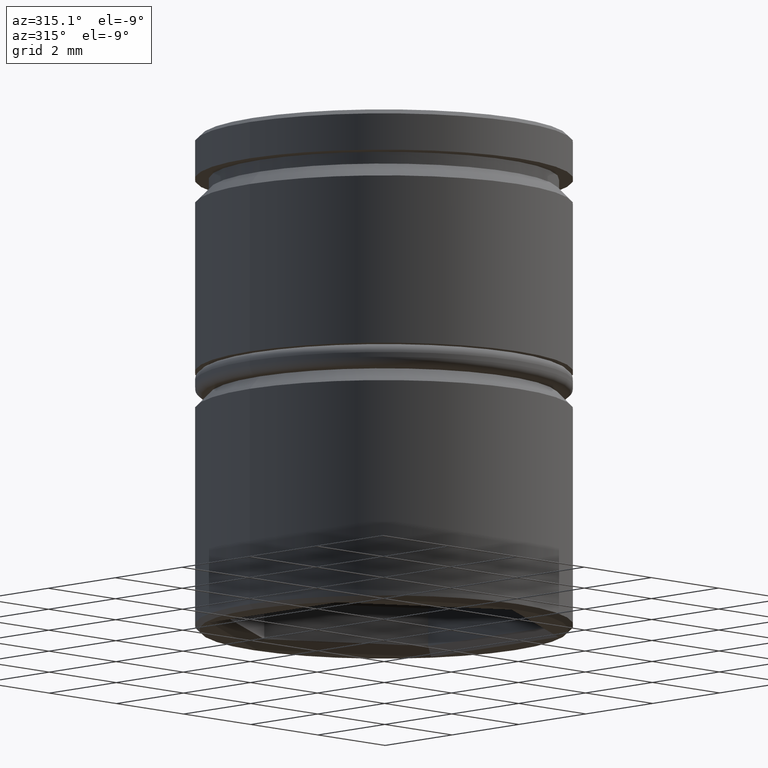
[diagram: clean part render]
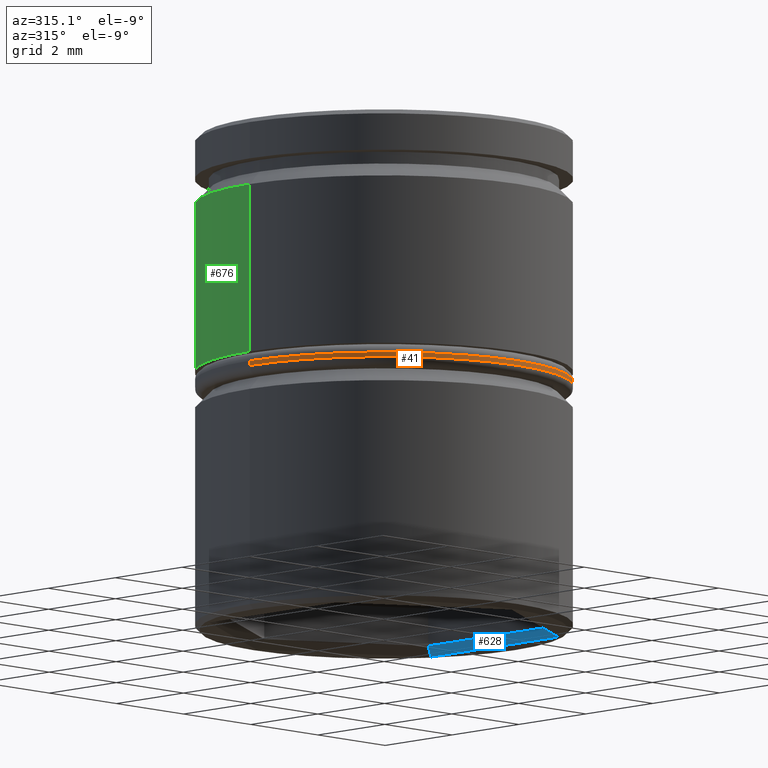
[diagram: same view with three faces highlighted in distinct colors, each labeled with its STEP entity id]
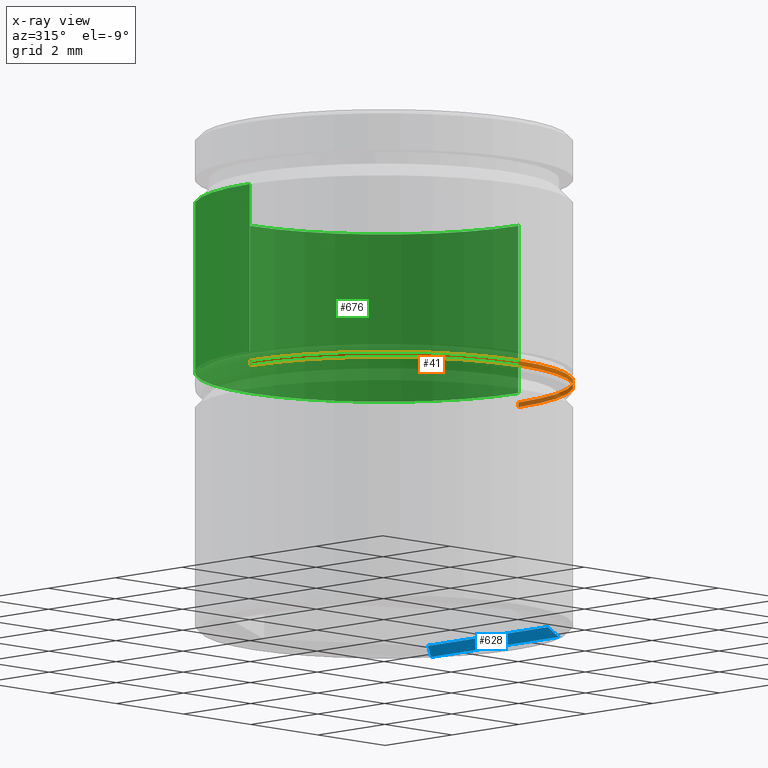
[diagram: x-ray of the same camera — body ghosted, the three highlighted faces saturated]
A machine part, auxiliary view with three faces highlighted in distinct colors.
The next image is the same camera in x-ray (body ghosted, the three faces saturated) — at least one of them is partly hidden behind the body in this view.
Their STEP definitions:

[orange] entity #41 — the highlighted cylindrical surface (partial cylindrical patch) has radius 4 mm, axis along (-0, -0, 1).
#24 = VERTEX_POINT ( 'NONE', #909 ) ;
#41 = ADVANCED_FACE ( 'NONE', ( #648 ), #1118, .T. ) ;
#68 = CARTESIAN_POINT ( 'NONE',  ( -4.000000000000000000, 4.898587196589412829E-16, -5.299999999999998934 ) ) ;
#74 = CARTESIAN_POINT ( 'NONE',  ( 4.000000000000000000, 0.000000000000000000, -5.200000000000000178 ) ) ;
#81 = DIRECTION ( 'NONE',  ( -0.000000000000000000, -0.000000000000000000, 1.000000000000000000 ) ) ;
#85 = DIRECTION ( 'NONE',  ( -0.000000000000000000, -0.000000000000000000, 1.000000000000000000 ) ) ;
#87 = EDGE_CURVE ( 'NONE', #920, #1004, #977, .T. ) ;
#154 = EDGE_CURVE ( 'NONE', #941, #24, #1126, .T. ) ;
#276 = CARTESIAN_POINT ( 'NONE',  ( 0.000000000000000000, 0.000000000000000000, -16.81370849898475939 ) ) ;
#351 = AXIS2_PLACEMENT_3D ( 'NONE', #441, #1005, #385 ) ;
#360 = ORIENTED_EDGE ( 'NONE', *, *, #87, .T. ) ;
#385 = DIRECTION ( 'NONE',  ( -1.000000000000000000, 0.000000000000000000, 0.000000000000000000 ) ) ;
#430 = EDGE_CURVE ( 'NONE', #941, #1004, #890, .T. ) ;
#441 = CARTESIAN_POINT ( 'NONE',  ( 0.000000000000000000, 0.000000000000000000, -5.200000000000000178 ) ) ;
#457 = ORIENTED_EDGE ( 'NONE', *, *, #785, .T. ) ;
#472 = CARTESIAN_POINT ( 'NONE',  ( 0.000000000000000000, 0.000000000000000000, -5.299999999999998934 ) ) ;
#481 = EDGE_LOOP ( 'NONE', ( #1057, #1175, #457, #360 ) ) ;
#537 = AXIS2_PLACEMENT_3D ( 'NONE', #472, #1111, #842 ) ;
#648 = FACE_OUTER_BOUND ( 'NONE', #481, .T. ) ;
#684 = LINE ( 'NONE', #1069, #1082 ) ;
#703 = AXIS2_PLACEMENT_3D ( 'NONE', #276, #85, #731 ) ;
#731 = DIRECTION ( 'NONE',  ( 1.000000000000000000, 0.000000000000000000, 0.000000000000000000 ) ) ;
#785 = EDGE_CURVE ( 'NONE', #24, #920, #684, .T. ) ;
#796 = VECTOR ( 'NONE', #81, 1000.000000000000000 ) ;
#823 = CARTESIAN_POINT ( 'NONE',  ( -4.000000000000000000, 4.898587196589412829E-16, -5.200000000000000178 ) ) ;
#842 = DIRECTION ( 'NONE',  ( 1.000000000000000000, 0.000000000000000000, 0.000000000000000000 ) ) ;
#884 = CARTESIAN_POINT ( 'NONE',  ( -4.000000000000000000, 4.898587196589412829E-16, -16.81370849898475939 ) ) ;
#890 = LINE ( 'NONE', #884, #796 ) ;
#909 = CARTESIAN_POINT ( 'NONE',  ( 4.000000000000000000, 0.000000000000000000, -5.299999999999998934 ) ) ;
#920 = VERTEX_POINT ( 'NONE', #74 ) ;
#941 = VERTEX_POINT ( 'NONE', #68 ) ;
#977 = CIRCLE ( 'NONE', #351, 4.000000000000000000 ) ;
#1004 = VERTEX_POINT ( 'NONE', #823 ) ;
#1005 = DIRECTION ( 'NONE',  ( 0.000000000000000000, 0.000000000000000000, -1.000000000000000000 ) ) ;
#1055 = DIRECTION ( 'NONE',  ( -0.000000000000000000, -0.000000000000000000, 1.000000000000000000 ) ) ;
#1057 = ORIENTED_EDGE ( 'NONE', *, *, #430, .F. ) ;
#1069 = CARTESIAN_POINT ( 'NONE',  ( 4.000000000000000000, 0.000000000000000000, -16.81370849898475939 ) ) ;
#1082 = VECTOR ( 'NONE', #1055, 1000.000000000000000 ) ;
#1111 = DIRECTION ( 'NONE',  ( 0.000000000000000000, 0.000000000000000000, 1.000000000000000000 ) ) ;
#1118 = CYLINDRICAL_SURFACE ( 'NONE', #703, 4.000000000000000000 ) ;
#1126 = CIRCLE ( 'NONE', #537, 4.000000000000000000 ) ;
#1175 = ORIENTED_EDGE ( 'NONE', *, *, #154, .T. ) ;

[blue] entity #628 — the highlighted planar face has unit normal (-0.7071, 0, -0.7071).
#22 = CARTESIAN_POINT ( 'NONE',  ( 3.299999999999999378, -1.905255888325763980, -10.50000000000000000 ) ) ;
#35 = CARTESIAN_POINT ( 'NONE',  ( 3.299999999999999822, 1.789785834487839455, -10.50000000000000000 ) ) ;
#52 = PLANE ( 'NONE',  #925 ) ;
#66 = DIRECTION ( 'NONE',  ( -0.7071067811865503483, 8.566910001956425243E-17, -0.7071067811865447972 ) ) ;
#76 = EDGE_CURVE ( 'NONE', #662, #1043, #808, .T. ) ;
#111 = VECTOR ( 'NONE', #414, 999.9999999999998863 ) ;
#134 = DIRECTION ( 'NONE',  ( 0.6546536707079758655, -0.3779644730092231453, -0.6546536707079808615 ) ) ;
#172 = EDGE_CURVE ( 'NONE', #662, #888, #320, .T. ) ;
#203 = EDGE_CURVE ( 'NONE', #765, #888, #573, .T. ) ;
#233 = CARTESIAN_POINT ( 'NONE',  ( 3.100000000000000977, -1.789785834487840344, -10.30000000000000071 ) ) ;
#258 = CARTESIAN_POINT ( 'NONE',  ( 3.100000000000000977, 1.789785834487839455, -10.30000000000000071 ) ) ;
#285 = DIRECTION ( 'NONE',  ( -1.211544031239644746E-16, -1.000000000000000000, 0.000000000000000000 ) ) ;
#320 = LINE ( 'NONE', #683, #111 ) ;
#397 = VECTOR ( 'NONE', #285, 1000.000000000000000 ) ;
#414 = DIRECTION ( 'NONE',  ( 0.6546536707079754214, 0.3779644730092244220, -0.6546536707079805284 ) ) ;
#551 = CARTESIAN_POINT ( 'NONE',  ( 3.100000000000000977, -1.789785834487840344, -10.30000000000000071 ) ) ;
#570 = DIRECTION ( 'NONE',  ( 1.211544031239644746E-16, 1.000000000000000000, 0.000000000000000000 ) ) ;
#573 = LINE ( 'NONE', #35, #598 ) ;
#598 = VECTOR ( 'NONE', #570, 1000.000000000000000 ) ;
#628 = ADVANCED_FACE ( 'NONE', ( #1149 ), #52, .T. ) ;
#662 = VERTEX_POINT ( 'NONE', #700 ) ;
#664 = CARTESIAN_POINT ( 'NONE',  ( 3.100000000000000977, -1.789785834487840344, -10.30000000000000071 ) ) ;
#683 = CARTESIAN_POINT ( 'NONE',  ( 2.214285714285717077, 1.278418453205603544, -9.414285714285709261 ) ) ;
#700 = CARTESIAN_POINT ( 'NONE',  ( 3.100000000000000977, 1.789785834487839455, -10.30000000000000071 ) ) ;
#765 = VERTEX_POINT ( 'NONE', #22 ) ;
#797 = VECTOR ( 'NONE', #134, 1000.000000000000000 ) ;
#807 = ORIENTED_EDGE ( 'NONE', *, *, #76, .F. ) ;
#808 = LINE ( 'NONE', #551, #397 ) ;
#829 = EDGE_LOOP ( 'NONE', ( #1178, #954, #1077, #807 ) ) ;
#888 = VERTEX_POINT ( 'NONE', #956 ) ;
#925 = AXIS2_PLACEMENT_3D ( 'NONE', #258, #66, #957 ) ;
#954 = ORIENTED_EDGE ( 'NONE', *, *, #203, .F. ) ;
#956 = CARTESIAN_POINT ( 'NONE',  ( 3.299999999999999822, 1.905255888325763536, -10.50000000000000000 ) ) ;
#957 = DIRECTION ( 'NONE',  ( 1.211544031239644746E-16, 1.000000000000000000, 0.000000000000000000 ) ) ;
#1023 = EDGE_CURVE ( 'NONE', #1043, #765, #1135, .T. ) ;
#1043 = VERTEX_POINT ( 'NONE', #233 ) ;
#1077 = ORIENTED_EDGE ( 'NONE', *, *, #1023, .F. ) ;
#1135 = LINE ( 'NONE', #664, #797 ) ;
#1149 = FACE_OUTER_BOUND ( 'NONE', #829, .T. ) ;
#1178 = ORIENTED_EDGE ( 'NONE', *, *, #172, .T. ) ;

[green] entity #676 — the highlighted cylindrical surface (partial cylindrical patch) has radius 4 mm, axis along (-0, -0, 1).
#19 = EDGE_CURVE ( 'NONE', #567, #744, #291, .T. ) ;
#175 = DIRECTION ( 'NONE',  ( 1.000000000000000000, 0.000000000000000000, 0.000000000000000000 ) ) ;
#191 = CARTESIAN_POINT ( 'NONE',  ( 4.000000000000000000, 0.000000000000000000, 0.000000000000000000 ) ) ;
#219 = VERTEX_POINT ( 'NONE', #230 ) ;
#227 = CARTESIAN_POINT ( 'NONE',  ( 0.000000000000000000, 0.000000000000000000, -4.999999999999999112 ) ) ;
#230 = CARTESIAN_POINT ( 'NONE',  ( -4.000000000000000000, 4.898587196589412829E-16, -1.425000000000001821 ) ) ;
#244 = DIRECTION ( 'NONE',  ( 1.000000000000000000, 0.000000000000000000, 0.000000000000000000 ) ) ;
#249 = CIRCLE ( 'NONE', #638, 4.000000000000000000 ) ;
#265 = VECTOR ( 'NONE', #1150, 1000.000000000000000 ) ;
#291 = LINE ( 'NONE', #191, #1171 ) ;
#323 = AXIS2_PLACEMENT_3D ( 'NONE', #227, #575, #772 ) ;
#329 = CARTESIAN_POINT ( 'NONE',  ( 0.000000000000000000, 0.000000000000000000, -1.425000000000001821 ) ) ;
#330 = EDGE_CURVE ( 'NONE', #629, #219, #616, .T. ) ;
#389 = EDGE_CURVE ( 'NONE', #219, #744, #249, .T. ) ;
#390 = CARTESIAN_POINT ( 'NONE',  ( 4.000000000000000000, 0.000000000000000000, -4.999999999999999112 ) ) ;
#407 = ORIENTED_EDGE ( 'NONE', *, *, #330, .T. ) ;
#429 = CARTESIAN_POINT ( 'NONE',  ( -4.000000000000000000, 4.898587196589412829E-16, -4.999999999999999112 ) ) ;
#448 = ORIENTED_EDGE ( 'NONE', *, *, #896, .T. ) ;
#557 = DIRECTION ( 'NONE',  ( -0.000000000000000000, -0.000000000000000000, 1.000000000000000000 ) ) ;
#567 = VERTEX_POINT ( 'NONE', #390 ) ;
#575 = DIRECTION ( 'NONE',  ( -0.000000000000000000, -0.000000000000000000, 1.000000000000000000 ) ) ;
#616 = LINE ( 'NONE', #787, #265 ) ;
#619 = AXIS2_PLACEMENT_3D ( 'NONE', #1051, #800, #244 ) ;
#629 = VERTEX_POINT ( 'NONE', #429 ) ;
#638 = AXIS2_PLACEMENT_3D ( 'NONE', #329, #695, #175 ) ;
#639 = CIRCLE ( 'NONE', #323, 4.000000000000000000 ) ;
#676 = ADVANCED_FACE ( 'NONE', ( #881 ), #693, .T. ) ;
#693 = CYLINDRICAL_SURFACE ( 'NONE', #619, 4.000000000000000000 ) ;
#695 = DIRECTION ( 'NONE',  ( 0.000000000000000000, 0.000000000000000000, -1.000000000000000000 ) ) ;
#744 = VERTEX_POINT ( 'NONE', #1032 ) ;
#746 = ORIENTED_EDGE ( 'NONE', *, *, #389, .T. ) ;
#772 = DIRECTION ( 'NONE',  ( 1.000000000000000000, 0.000000000000000000, 0.000000000000000000 ) ) ;
#787 = CARTESIAN_POINT ( 'NONE',  ( -4.000000000000000000, 4.898587196589412829E-16, 0.000000000000000000 ) ) ;
#800 = DIRECTION ( 'NONE',  ( -0.000000000000000000, -0.000000000000000000, 1.000000000000000000 ) ) ;
#881 = FACE_OUTER_BOUND ( 'NONE', #934, .T. ) ;
#896 = EDGE_CURVE ( 'NONE', #567, #629, #639, .T. ) ;
#934 = EDGE_LOOP ( 'NONE', ( #448, #407, #746, #1081 ) ) ;
#1032 = CARTESIAN_POINT ( 'NONE',  ( 4.000000000000000000, 0.000000000000000000, -1.425000000000001821 ) ) ;
#1051 = CARTESIAN_POINT ( 'NONE',  ( 0.000000000000000000, 0.000000000000000000, 0.000000000000000000 ) ) ;
#1081 = ORIENTED_EDGE ( 'NONE', *, *, #19, .F. ) ;
#1150 = DIRECTION ( 'NONE',  ( -0.000000000000000000, -0.000000000000000000, 1.000000000000000000 ) ) ;
#1171 = VECTOR ( 'NONE', #557, 1000.000000000000000 ) ;